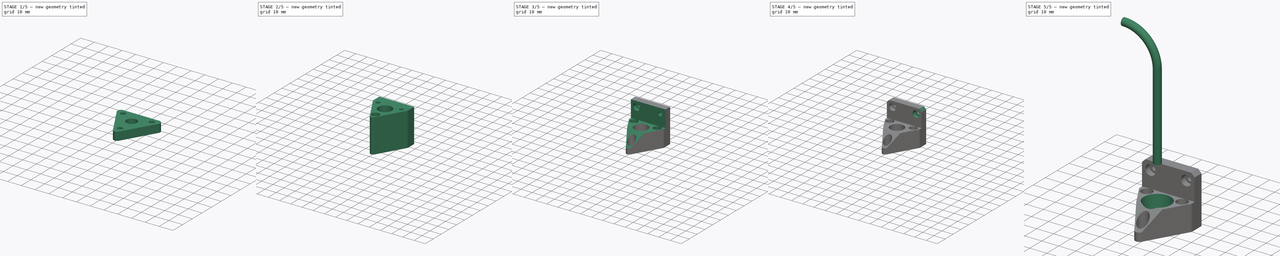
[diagram: build sequence overview — one tinted view per stage of 5, left to right]
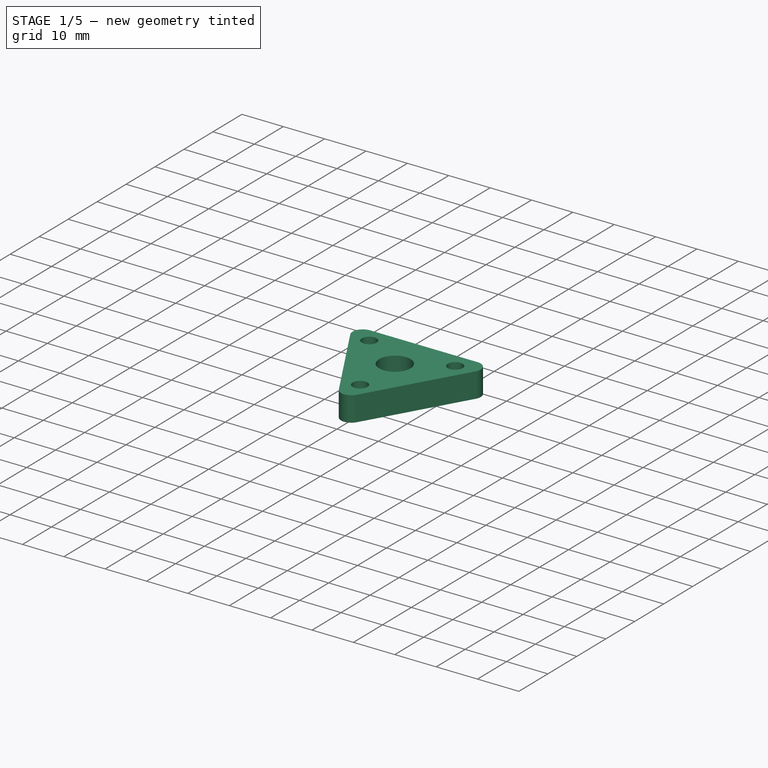
[diagram: stage 1 of 5 — iso view after this stage's code; geometry added in this stage tinted green]
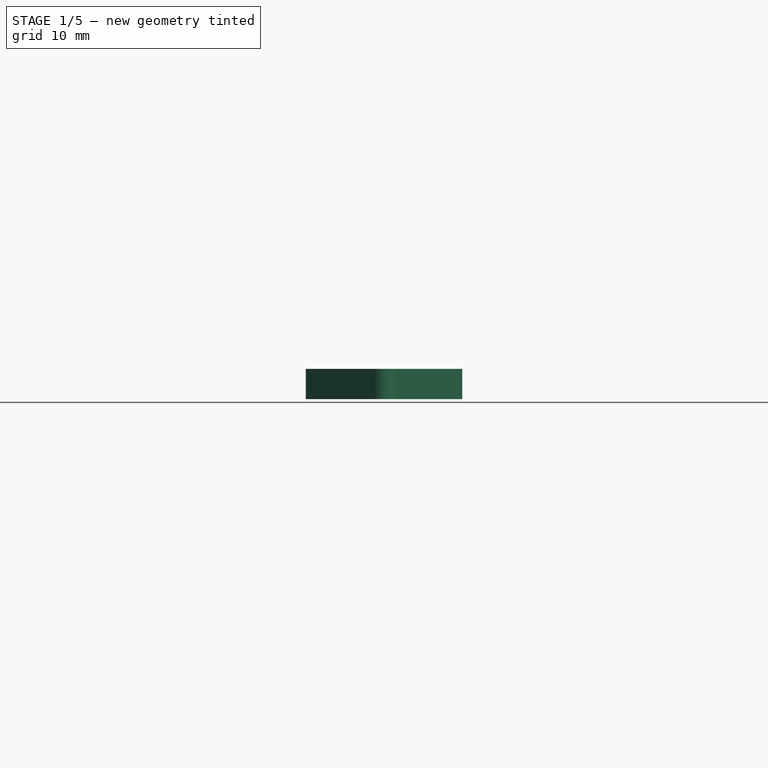
[diagram: stage 1 of 5 — front view after this stage's code; geometry added in this stage tinted green]
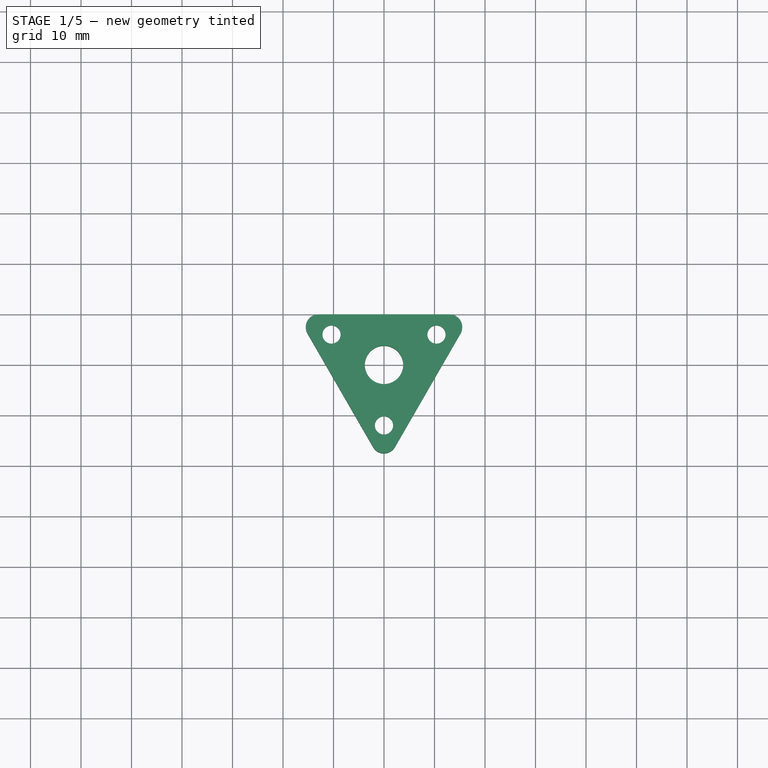
[diagram: stage 1 of 5 — top view after this stage's code; geometry added in this stage tinted green]
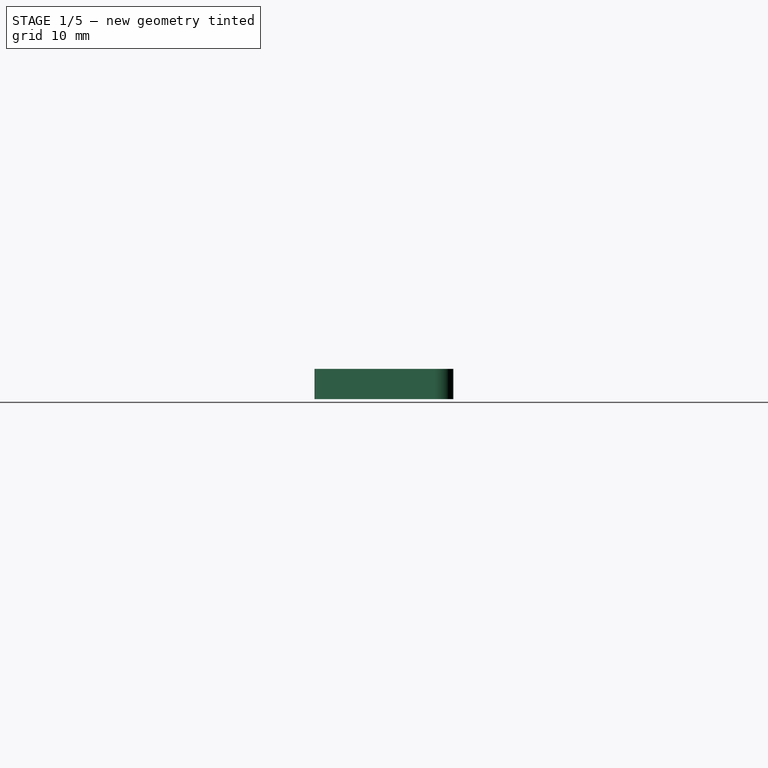
[diagram: stage 1 of 5 — right view after this stage's code; geometry added in this stage tinted green]
FCSTD DOCUMENT  (FreeCAD 0.18R16158 (Git))
Label: camera_probe_mount
License: All rights reserved
LicenseURL: http://en.wikipedia.org/wiki/All_rights_reserved
objects: Sketcher::SketchObject×20, PartDesign::Pocket×13, PartDesign::Body×4, PartDesign::Mirrored×4, PartDesign::Pad×3, PartDesign::PolarPattern×3, PartDesign::ShapeBinder×2, App::Part×2, PartDesign::SubtractivePipe×1, Part::Helix×1, PartDesign::Plane×1, PartDesign::Chamfer×1, PartDesign::SubtractiveLoft×1
note: 72 computed .brp shape members not serialized (recipe doc carries the construction recipe); baked Part::Feature solids carry a one-line shape summary decoded from their .brp

FEATURE [PartDesign::Body] Body001  label="cable"
  Group = -> [Sketch002,ShapeBinder,Sketch003,SubtractivePipe]
  Origin = -> Origin002
  Tip = -> SubtractivePipe
FEATURE [App::Part] Part  label="camera"
  Group = -> [Body,Body001]
  Origin = -> Origin
FEATURE [Part::Helix] Helix  label="spring"
  Angle = 0
  AttacherType = Attacher::AttachEngine3D
  Height = 20
  LocalCoord = 0
  Pitch = 4
  Placement = pos=(0,0,6) rot=(0,0,1;0rad)
  Radius = 5.84
  Style = 1
FEATURE [Sketcher::SketchObject] Sketch004
  MapMode = 5
  Support = -> [XY_Plane004]
  sketch-geometry (17):
    g0: Circle CenterX=0 CenterY=0 CenterZ=0 NormalX=0 NormalY=0 NormalZ=1 AngleXU=0 Radius=3.8
    g1: LineSegment StartX=-12.9904 StartY=10 StartZ=0 EndX=12.9904 EndY=10 EndZ=0
    g2: LineSegment StartX=15.1554 StartY=6.25 StartZ=0 EndX=2.16506 EndY=-16.25 EndZ=0
    g3: LineSegment StartX=-2.16506 StartY=-16.25 StartZ=0 EndX=-15.1554 EndY=6.25 EndZ=0
    g4: ArcOfCircle CenterX=-12.9904 CenterY=7.5 CenterZ=0 NormalX=0 NormalY=0 NormalZ=1 AngleXU=0 Radius=2.5 StartAngle=1.5708 EndAngle=3.66519
    g5: ArcOfCircle CenterX=12.9904 CenterY=7.5 CenterZ=0 NormalX=0 NormalY=0 NormalZ=1 AngleXU=0 Radius=2.5 StartAngle=5.75959 EndAngle=7.85398
    g6: ArcOfCircle CenterX=0 CenterY=-15 CenterZ=0 NormalX=0 NormalY=0 NormalZ=1 AngleXU=0 Radius=2.5 StartAngle=3.66519 EndAngle=5.75959
    g7: LineSegment [constr] StartX=-12.9904 StartY=10 StartZ=0 EndX=-12.9904 EndY=7.5 EndZ=0
    g8: LineSegment [constr] StartX=-12.9904 StartY=7.5 StartZ=0 EndX=-15.1554 EndY=6.25 EndZ=0
    g9: LineSegment [constr] StartX=12.9904 StartY=7.5 StartZ=0 EndX=12.9904 EndY=10 EndZ=0
    g10: LineSegment [constr] StartX=12.9904 StartY=7.5 StartZ=0 EndX=15.1554 EndY=6.25 EndZ=0
    g11: LineSegment [constr] StartX=0 StartY=-15 StartZ=0 EndX=-2.16506 EndY=-16.25 EndZ=0
    g12: LineSegment [constr] StartX=0 StartY=-15 StartZ=0 EndX=2.16506 EndY=-16.25 EndZ=0
    g13: LineSegment [constr] StartX=-2.16506 StartY=-16.25 StartZ=0 EndX=2.16506 EndY=-16.25 EndZ=0
    g14: LineSegment [constr] StartX=0 StartY=0 StartZ=0 EndX=12.9904 EndY=7.5 EndZ=0
    g15: LineSegment [constr] StartX=0 StartY=0 StartZ=0 EndX=-12.9904 EndY=7.5 EndZ=0
    g16: LineSegment [constr] StartX=0 StartY=0 StartZ=0 EndX=0 EndY=-15 EndZ=0
  constraints (43):
    c: Coincident(g0,g-1)
    c: Horizontal(g1)
    c: Coincident(g4,g3)
    c: Coincident(g4,g1)
    c: Coincident(g5,g1)
    c: Coincident(g5,g2)
    c: PointOnObject(g6,g-2)
    c: Coincident(g6,g3)
    c: Coincident(g6,g2)
    c: Coincident(g7,g1)
    c: Coincident(g7,g4)
    c: Vertical(g7)
    c: Coincident(g8,g4)
    c: Coincident(g8,g3)
    c: Coincident(g9,g5)
    c: Coincident(g9,g1)
    c: Coincident(g10,g5)
    c: Coincident(g10,g2)
    c: Coincident(g11,g6)
    c: Coincident(g11,g3)
    c: Coincident(g12,g6)
    c: Coincident(g12,g2)
    c: Equal(g5,g6)
    c: Vertical(g9)
    c: Angle(g10,g9) = 2.0944
    c: Angle(g7,g8) = 2.0944
    c: Angle(g11,g12) = 2.0944
    c: Coincident(g13,g3)
    c: Coincident(g13,g2)
    c: Horizontal(g13)
    c: Coincident(g14,g0)
    c: Coincident(g14,g5)
    c: Coincident(g15,g0)
    c: Coincident(g15,g4)
    c: Angle(g14,g15) = 2.0944
    c: Symmetric(g5,g4,g-2)
    c: Radius(g5) = 2.5
    c: Coincident(g16,g0)
    c: Coincident(g16,g6)
    c: Equal(g14,g15)
    c: Equal(g15,g16)
    c: DistanceY(g16,g16) = 15
    c: Diameter(g0) = 7.6
FEATURE [PartDesign::Pad] Pad001
  Length = 6
  Length2 = 100
  Profile = -> Sketch004
  Refine = true
  Type = 0
FEATURE [Sketcher::SketchObject] Sketch005
  MapMode = 5
  Placement = pos=(0,0,0) rot=(1,0,0;3.14159rad)
  Support = -> [Pad001]
  sketch-geometry (1):
    g0: Circle CenterX=0 CenterY=12 CenterZ=0 NormalX=0 NormalY=0 NormalZ=1 AngleXU=0 Radius=1.8
  constraints (3):
    c: PointOnObject(g0,g-2)
    c: Diameter(g0) = 3.6
    c: DistanceY(g-1,g0) = 12
FEATURE [PartDesign::Pocket] Pocket001
  BaseFeature = -> Pad001
  Length = 5
  Length2 = 100
  Profile = -> Sketch005
  Refine = true
  Type = 1
FEATURE [PartDesign::PolarPattern] PolarPattern
  Angle = 360
  Axis = -> Sketch005 [N_Axis]
  BaseFeature = -> Pocket001
  Occurrences = 3
  Originals = -> [Pocket001]
  Refine = true
FEATURE [Sketcher::SketchObject] Sketch006
  ExternalGeometry = -> [PolarPattern]
  MapMode = 5
  Placement = pos=(0,0,0) rot=(1,0,0;3.14159rad)
  Support = -> [PolarPattern]
  sketch-geometry (7):
    g0: LineSegment StartX=1.63101 StartY=14.825 StartZ=0 EndX=-1.63101 EndY=14.825 EndZ=0
    g1: LineSegment StartX=-1.63101 StartY=14.825 StartZ=0 EndX=-3.26203 EndY=12 EndZ=0
    g2: LineSegment StartX=-3.26203 StartY=12 StartZ=0 EndX=-1.63101 EndY=9.175 EndZ=0
    g3: LineSegment StartX=-1.63101 StartY=9.175 StartZ=0 EndX=1.63101 EndY=9.175 EndZ=0
    g4: LineSegment StartX=1.63101 StartY=9.175 StartZ=0 EndX=3.26203 EndY=12 EndZ=0
    g5: LineSegment StartX=3.26203 StartY=12 StartZ=0 EndX=1.63101 EndY=14.825 EndZ=0
    g6: Circle [constr] CenterX=0 CenterY=12 CenterZ=0 NormalX=0 NormalY=0 NormalZ=1 AngleXU=0 Radius=3.26203
  constraints (16):
    c: Coincident(g0,g1)
    c: Coincident(g1,g2)
    c: Coincident(g2,g3)
    c: Coincident(g3,g4)
    c: Coincident(g4,g5)
    c: Coincident(g5,g0)
    c: Equal(g0, g1-g5) x5
    c: PointOnObject(g0,g6)
    c: PointOnObject(g1,g6)
    c: PointOnObject(g2,g6)
    c: PointOnObject(g3,g6)
    c: PointOnObject(g4,g6)
    c: PointOnObject(g5,g6)
    c: Coincident(g6,g-3)
    c: Horizontal(g0)
    c: DistanceY(g3,g0) = 5.65
FEATURE [PartDesign::Pocket] Pocket002
  BaseFeature = -> PolarPattern
  Length = 3
  Length2 = 100
  Profile = -> Sketch006
  Refine = true
  Type = 0
FEATURE [PartDesign::PolarPattern] PolarPattern001
  Angle = 360
  Axis = -> Sketch006 [N_Axis]
  BaseFeature = -> Pocket002
  Occurrences = 3
  Originals = -> [Pocket002]
  Refine = true
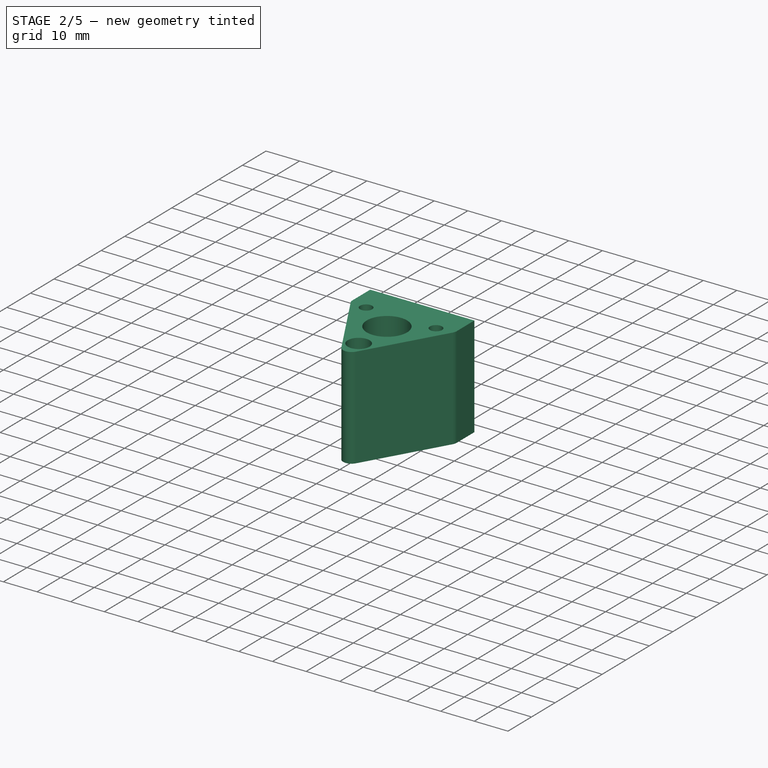
[diagram: stage 2 of 5 — iso view after this stage's code; geometry added in this stage tinted green]
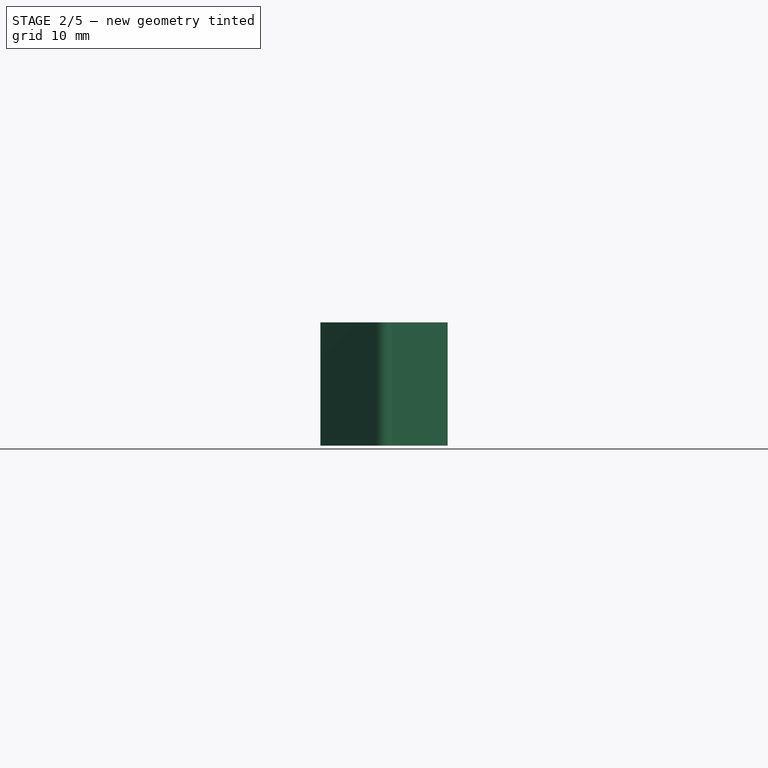
[diagram: stage 2 of 5 — front view after this stage's code; geometry added in this stage tinted green]
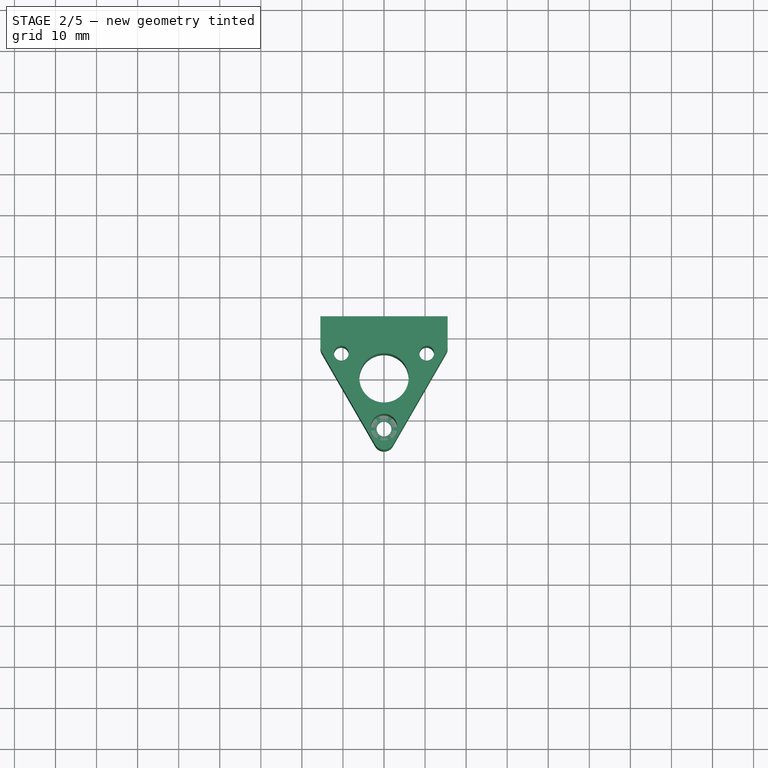
[diagram: stage 2 of 5 — top view after this stage's code; geometry added in this stage tinted green]
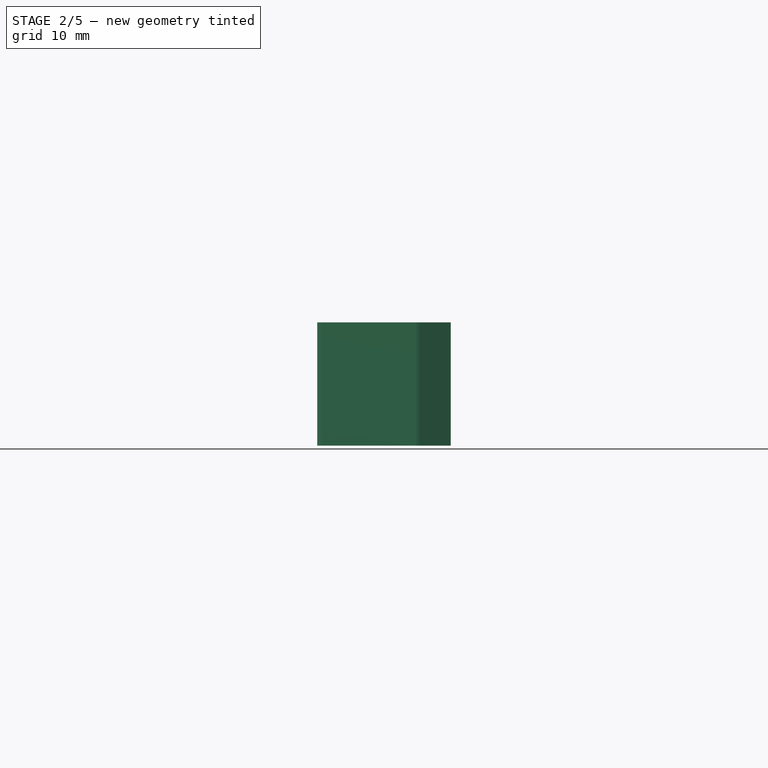
[diagram: stage 2 of 5 — right view after this stage's code; geometry added in this stage tinted green]
FEATURE [Sketcher::SketchObject] Sketch007
  ExternalGeometry = -> [PolarPattern001]
  MapMode = 5
  Placement = pos=(0,10,0) rot=(0,0.707107,0.707107;3.14159rad)
  Support = -> [PolarPattern001]
  sketch-geometry (2):
    g0: Circle CenterX=0 CenterY=3 CenterZ=0 NormalX=0 NormalY=0 NormalZ=1 AngleXU=0 Radius=1.7
    g1: LineSegment [constr] StartX=0 StartY=0 StartZ=0 EndX=0 EndY=6 EndZ=0
  constraints (5):
    c: Diameter(g0) = 3.4
    c: Coincident(g1,g-1)
    c: PointOnObject(g1,g-3)
    c: Vertical(g1)
    c: Symmetric(g1,g-1,g0)
FEATURE [PartDesign::Pocket] Pocket003
  BaseFeature = -> PolarPattern001
  Length = 5.5
  Length2 = 100
  Profile = -> Sketch007
  Refine = true
  Type = 0
FEATURE [Sketcher::SketchObject] Sketch008
  ExternalGeometry = -> [Pocket003]
  MapMode = 5
  Placement = pos=(0,0,0) rot=(1,0,0;3.14159rad)
  Support = -> [Pocket003]
  sketch-geometry (4):
    g0: LineSegment StartX=-2.8 StartY=-5.1 StartZ=0 EndX=2.8 EndY=-5.1 EndZ=0
    g1: LineSegment StartX=2.8 StartY=-5.1 StartZ=0 EndX=2.8 EndY=-7 EndZ=0
    g2: LineSegment StartX=2.8 StartY=-7 StartZ=0 EndX=-2.8 EndY=-7 EndZ=0
    g3: LineSegment StartX=-2.8 StartY=-7 StartZ=0 EndX=-2.8 EndY=-5.1 EndZ=0
  constraints (11):
    c: Coincident(g0,g1)
    c: Coincident(g1,g2)
    c: Coincident(g2,g3)
    c: Coincident(g3,g0)
    c: Horizontal(g2)
    c: Vertical(g1)
    c: Vertical(g3)
    c: Symmetric(g0,g0,g-2)
    c: DistanceY(g3,g3) = 1.9
    c: DistanceY(g-3,g1) = 3
    c: DistanceX(g0,g0) = 5.6
FEATURE [PartDesign::Pocket] Pocket004
  BaseFeature = -> Pocket003
  Length = 5
  Length2 = 100
  Profile = -> Sketch008
  Refine = true
  Type = 1
FEATURE [Sketcher::SketchObject] Sketch009
  ExternalGeometry = -> [Pocket004]
  MapMode = 5
  Placement = pos=(0,10,0) rot=(0,0.707107,0.707107;3.14159rad)
  Support = -> [Pocket004]
  sketch-geometry (5):
    g0: LineSegment StartX=-0.75 StartY=1.47439 StartZ=0 EndX=-0.25 EndY=1.2 EndZ=0
    g1: LineSegment StartX=-0.25 StartY=1.2 StartZ=0 EndX=0.25 EndY=1.2 EndZ=0
    g2: LineSegment StartX=0.25 StartY=1.2 StartZ=0 EndX=0.75 EndY=1.47439 EndZ=0
    g3: LineSegment StartX=0.75 StartY=1.47439 StartZ=0 EndX=-0.75 EndY=1.47439 EndZ=0
    g4: LineSegment [constr] StartX=-0.432225 StartY=1.3 StartZ=0 EndX=0.432225 EndY=1.3 EndZ=0
  constraints (15):
    c: PointOnObject(g0,g-3)
    c: Coincident(g1,g0)
    c: Coincident(g2,g1)
    c: PointOnObject(g2,g-3)
    c: Coincident(g3,g2)
    c: Coincident(g3,g0)
    c: Horizontal(g3)
    c: PointOnObject(g4,g0)
    c: PointOnObject(g4,g2)
    c: Horizontal(g4)
    c: Tangent(g4,g-3)
    c: Symmetric(g1,g0,g-2)
    c: DistanceX(g3,g3) = 1.5
    c: DistanceX(g1,g1) = 0.5
    c: DistanceY(g1,g4) = 0.1
FEATURE [PartDesign::Pocket] Pocket005
  BaseFeature = -> Pocket004
  Length = 0
  Length2 = 100
  Profile = -> Sketch009
  Refine = true
  Type = 3
  UpToFace = -> Pocket004 [Face40]
FEATURE [PartDesign::Body] Body002  label="base"
  Group = -> [Sketch004,Pad001,Sketch005,Pocket001,PolarPattern,Sketch006,Pocket002,PolarPattern001,Sketch007,Pocket003,Sketch008,Pocket004,Sketch009,Pocket005]
  Origin = -> Origin004
  Tip = -> Pocket005
FEATURE [PartDesign::ShapeBinder] ShapeBinder002
  Placement = pos=(0,0,-26) rot=(0,0,1;0rad)
  Support = -> [Pocket005]
  TraceSupport = true
FEATURE [Sketcher::SketchObject] Sketch017
  ExternalGeometry = -> [ShapeBinder002]
  MapMode = 5
  Support = -> [XY_Plane006]
  sketch-geometry (14):
    g0: LineSegment StartX=-2.16506 StartY=-16.25 StartZ=0 EndX=-15.1554 EndY=6.25 EndZ=0
    g1: LineSegment StartX=2.16506 StartY=-16.25 StartZ=0 EndX=15.1554 EndY=6.25 EndZ=0
    g2: LineSegment StartX=15.4904 StartY=15 StartZ=0 EndX=-15.4904 EndY=15 EndZ=0
    g3: LineSegment StartX=-15.4904 StartY=15 StartZ=0 EndX=-15.4904 EndY=7.5 EndZ=0
    g4: LineSegment StartX=15.4904 StartY=15 StartZ=0 EndX=15.4904 EndY=7.5 EndZ=0
    g5: ArcOfCircle CenterX=3e-16 CenterY=-15 CenterZ=0 NormalX=0 NormalY=0 NormalZ=1 AngleXU=0 Radius=2.5 StartAngle=3.66519 EndAngle=5.75959
    g6: ArcOfCircle CenterX=-12.9904 CenterY=7.5 CenterZ=0 NormalX=0 NormalY=0 NormalZ=1 AngleXU=0 Radius=2.5 StartAngle=3.14159 EndAngle=3.66519
    g7: ArcOfCircle CenterX=12.9904 CenterY=7.5 CenterZ=0 NormalX=0 NormalY=0 NormalZ=1 AngleXU=0 Radius=2.5 StartAngle=5.75959 EndAngle=6.28319
    g8: LineSegment [constr] StartX=-12.9904 StartY=7.5 StartZ=0 EndX=-15.4904 EndY=7.5 EndZ=0
    g9: LineSegment [constr] StartX=12.9904 StartY=7.5 StartZ=0 EndX=15.4904 EndY=7.5 EndZ=0
    g10: Circle CenterX=-10.3923 CenterY=6 CenterZ=0 NormalX=0 NormalY=0 NormalZ=1 AngleXU=0 Radius=1.8
    g11: Circle CenterX=10.3923 CenterY=6 CenterZ=0 NormalX=0 NormalY=0 NormalZ=1 AngleXU=0 Radius=1.8
    g12: Circle CenterX=0 CenterY=-12 CenterZ=0 NormalX=0 NormalY=0 NormalZ=1 AngleXU=0 Radius=1.8
    g13: Circle CenterX=0 CenterY=0 CenterZ=0 NormalX=0 NormalY=0 NormalZ=1 AngleXU=0 Radius=6
  constraints (35):
    c: Coincident(g5,g1)
    c: Coincident(g5,g0)
    c: Coincident(g3,g2)
    c: Coincident(g2,g4)
    c: Coincident(g0,g-6)
    c: Coincident(g1,g-6)
    c: Equal(g-6,g5)
    c: Vertical(g4)
    c: Vertical(g3)
    c: Horizontal(g2)
    c: Coincident(g6,g0)
    c: Coincident(g6,g3)
    c: Coincident(g7,g4)
    c: Coincident(g7,g1)
    c: Coincident(g1,g-7)
    c: Coincident(g0,g-4)
    c: Equal(g6,g-3)
    c: Equal(g7,g-7)
    c: PointOnObject(g4,g-7)
    c: PointOnObject(g3,g-3)
    c: Coincident(g8,g6)
    c: Coincident(g8,g3)
    c: Horizontal(g8)
    c: Coincident(g9,g7)
    c: Coincident(g9,g4)
    c: Horizontal(g9)
    c: DistanceY(g-7,g2) = 5
    c: Coincident(g10,g-9)
    c: Coincident(g11,g-8)
    c: Coincident(g12,g-10)
    c: Equal(g11,g-8)
    c: Equal(g10,g-9)
    c: Equal(g12,g-10)
    c: Coincident(g13,g-1)
    c: Diameter(g13) = 12
FEATURE [PartDesign::Pad] Pad003
  Length = 30
  Length2 = 100
  Profile = -> Sketch017
  Refine = true
  Type = 0
FEATURE [Sketcher::SketchObject] Sketch018
  ExternalGeometry = -> [Pad003]
  MapMode = 5
  Placement = pos=(0,0,30) rot=(0,0,1;0rad)
  Support = -> [Pad003]
  sketch-geometry (1):
    g0: Circle CenterX=0 CenterY=-12 CenterZ=0 NormalX=0 NormalY=0 NormalZ=1 AngleXU=0 Radius=3.25
  constraints (2):
    c: Coincident(g0,g-3)
    c: Diameter(g0) = 6.5
FEATURE [PartDesign::Pocket] Pocket009
  BaseFeature = -> Pad003
  Length = 0
  Length2 = 100
  Offset = -2.4
  Profile = -> Sketch018
  Refine = true
  Type = 3
  UpToFace = -> Pad003 [Face13]
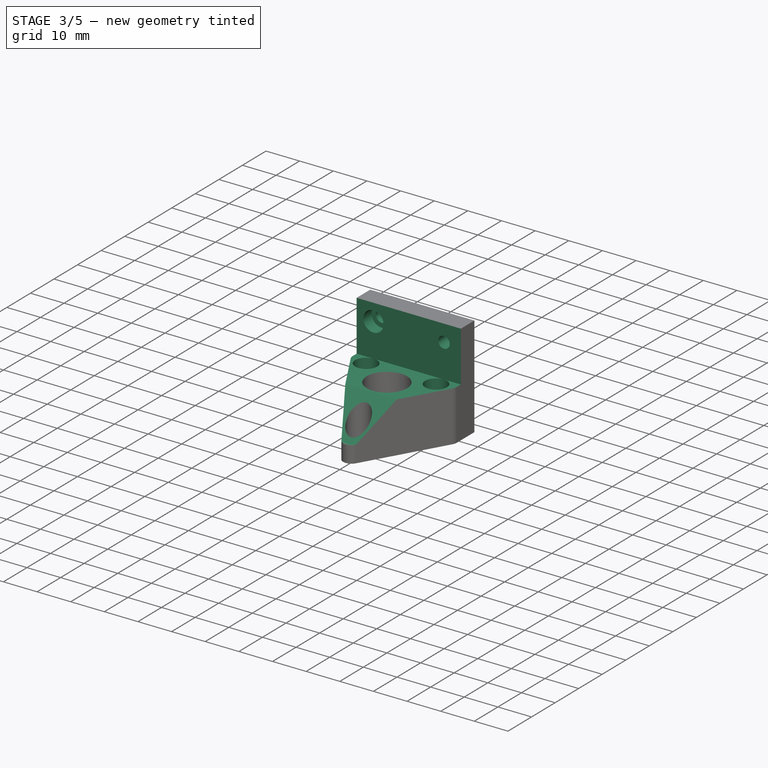
[diagram: stage 3 of 5 — iso view after this stage's code; geometry added in this stage tinted green]
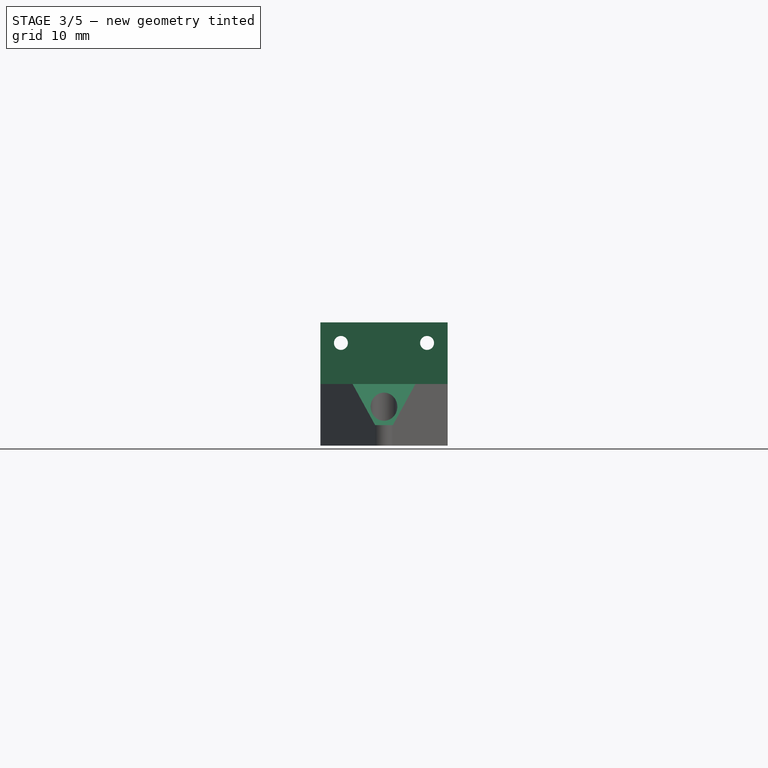
[diagram: stage 3 of 5 — front view after this stage's code; geometry added in this stage tinted green]
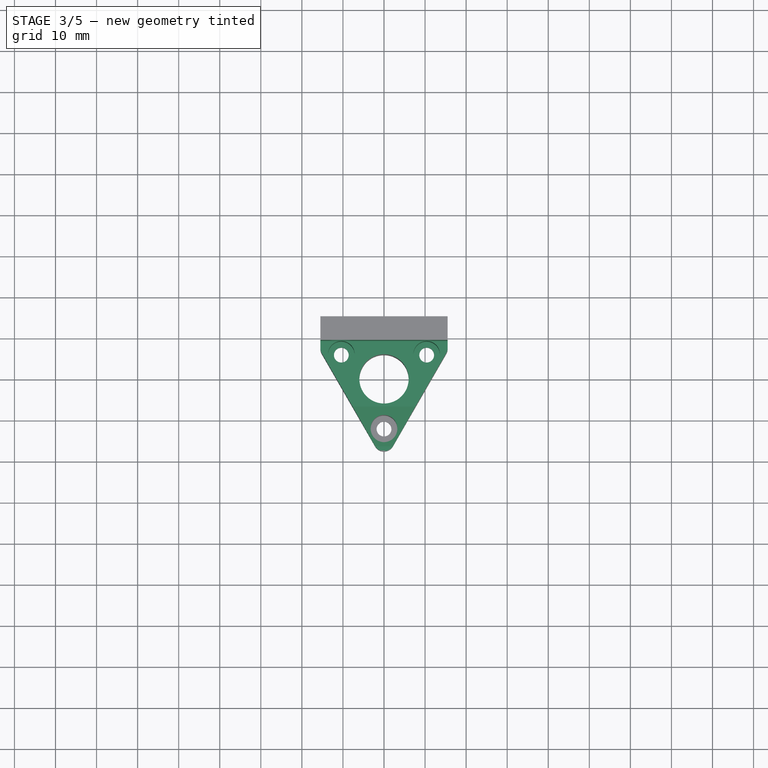
[diagram: stage 3 of 5 — top view after this stage's code; geometry added in this stage tinted green]
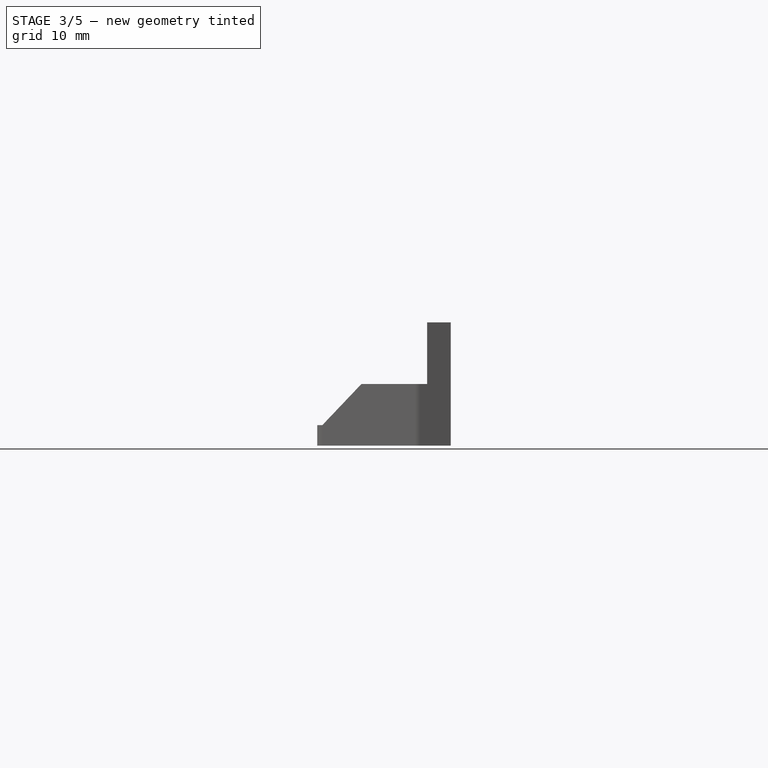
[diagram: stage 3 of 5 — right view after this stage's code; geometry added in this stage tinted green]
FEATURE [PartDesign::PolarPattern] PolarPattern004
  Angle = 360
  Axis = -> Sketch018 [N_Axis]
  BaseFeature = -> Pocket009
  Occurrences = 3
  Originals = -> [Pocket009]
  Refine = true
FEATURE [PartDesign::Plane] DatumPlane004
  Length = 39.6923
  MapMode = 5
  Placement = pos=(15.4904,0,0) rot=(0.57735,0.57735,0.57735;2.0944rad)
  ResizeMode = 0
  Support = -> [PolarPattern004]
  Width = 47.2092
FEATURE [Sketcher::SketchObject] Sketch019
  ExternalGeometry = -> [PolarPattern004]
  MapMode = 5
  Placement = pos=(15.4904,0,0) rot=(0.57735,0.57735,0.57735;2.0944rad)
  Support = -> [DatumPlane004]
  sketch-geometry (4):
    g0: LineSegment StartX=7.5 StartY=30 StartZ=0 EndX=-16.25 EndY=5 EndZ=0
    g1: LineSegment StartX=-16.25 StartY=5 StartZ=0 EndX=-18.75 EndY=5 EndZ=0
    g2: LineSegment StartX=-18.75 StartY=5 StartZ=0 EndX=-18.75 EndY=30 EndZ=0
    g3: LineSegment StartX=-18.75 StartY=30 StartZ=0 EndX=7.5 EndY=30 EndZ=0
  constraints (11):
    c: Coincident(g0,g-3)
    c: PointOnObject(g0,g-4)
    c: Coincident(g1,g0)
    c: Horizontal(g1)
    c: Coincident(g2,g1)
    c: Vertical(g2)
    c: Coincident(g3,g2)
    c: Coincident(g3,g0)
    c: Horizontal(g3)
    c: DistanceX(g1,g1) = 2.5
    c: DistanceY(g-4,g0) = 5
FEATURE [PartDesign::Pocket] Pocket010
  BaseFeature = -> PolarPattern004
  Length = 5
  Length2 = 100
  Profile = -> Sketch019
  Refine = true
  Type = 1
FEATURE [Sketcher::SketchObject] Sketch020
  ExternalGeometry = -> [Pocket010]
  MapMode = 5
  Placement = pos=(0,0,30) rot=(0,0,1;0rad)
  Support = -> [Pocket010]
  sketch-geometry (4):
    g0: LineSegment StartX=-15.4904 StartY=9.25 StartZ=0 EndX=15.4904 EndY=9.25 EndZ=0
    g1: LineSegment StartX=15.4904 StartY=9.25 StartZ=0 EndX=15.4904 EndY=-16.25 EndZ=0
    g2: LineSegment StartX=15.4904 StartY=-16.25 StartZ=0 EndX=-15.4904 EndY=-16.25 EndZ=0
    g3: LineSegment StartX=-15.4904 StartY=-16.25 StartZ=0 EndX=-15.4904 EndY=9.25 EndZ=0
  constraints (12):
    c: Coincident(g1,g2)
    c: Coincident(g2,g3)
    c: Horizontal(g2)
    c: Vertical(g1)
    c: Vertical(g3)
    c: Coincident(g0,g1)
    c: Coincident(g0,g3)
    c: Horizontal(g0)
    c: PointOnObject(g0,g-3)
    c: PointOnObject(g0,g-4)
    c: Tangent(g-5,g0)
    c: PointOnObject(g-6,g2)
FEATURE [PartDesign::Pocket] Pocket011
  BaseFeature = -> Pocket010
  Length = 15
  Length2 = 100
  Profile = -> Sketch020
  Refine = true
  Type = 0
FEATURE [Sketcher::SketchObject] Sketch021
  ExternalGeometry = -> [Pocket011]
  MapMode = 5
  Placement = pos=(0,15,0) rot=(0,0.707107,0.707107;3.14159rad)
  Support = -> [Pocket011]
  sketch-geometry (1):
    g0: Circle CenterX=10.4904 CenterY=25 CenterZ=0 NormalX=0 NormalY=0 NormalZ=1 AngleXU=0 Radius=1.7
  constraints (3):
    c: Diameter(g0) = 3.4
    c: DistanceX(g0,g-3) = 5
    c: DistanceY(g0,g-3) = 5
FEATURE [PartDesign::Pocket] Pocket012
  BaseFeature = -> Pocket011
  Length = 5
  Length2 = 100
  Profile = -> Sketch021
  Refine = true
  Type = 1
FEATURE [PartDesign::Mirrored] Mirrored
  BaseFeature = -> Pocket012
  MirrorPlane = -> Sketch021 [V_Axis]
  Originals = -> [Pocket012]
  Refine = true
FEATURE [Sketcher::SketchObject] Sketch022
  ExternalGeometry = -> [Mirrored]
  MapMode = 5
  Placement = pos=(0,9.25,0) rot=(1,0,0;1.5708rad)
  Support = -> [Mirrored]
  sketch-geometry (1):
    g0: Circle CenterX=-10.4904 CenterY=25 CenterZ=0 NormalX=0 NormalY=0 NormalZ=1 AngleXU=0 Radius=3
  constraints (1):
    c: Diameter(g0) = 6
FEATURE [PartDesign::Pocket] Pocket013
  BaseFeature = -> Mirrored
  Length = 3.5
  Length2 = 100
  Profile = -> Sketch022
  Refine = true
  Type = 0
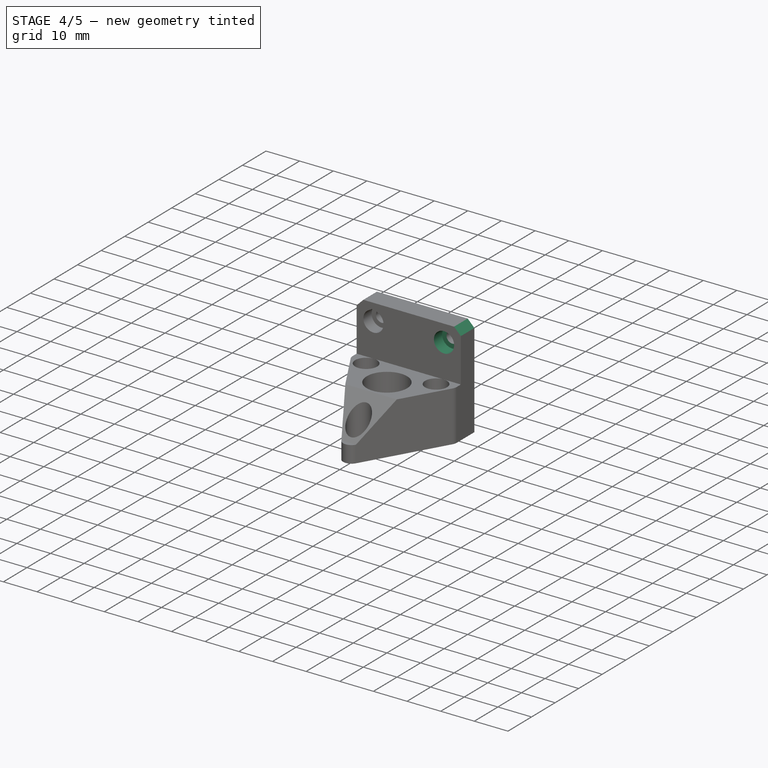
[diagram: stage 4 of 5 — iso view after this stage's code; geometry added in this stage tinted green]
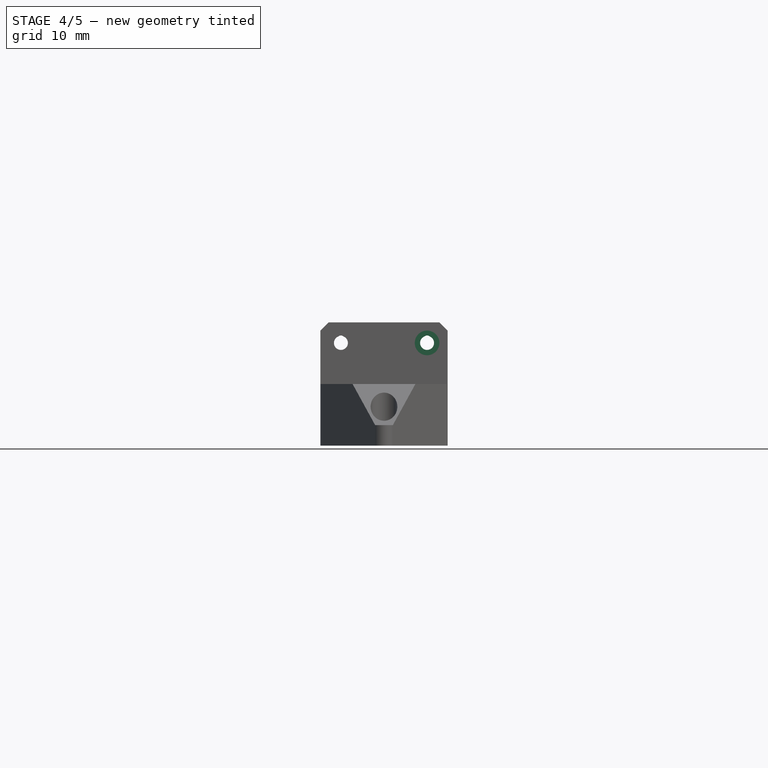
[diagram: stage 4 of 5 — front view after this stage's code; geometry added in this stage tinted green]
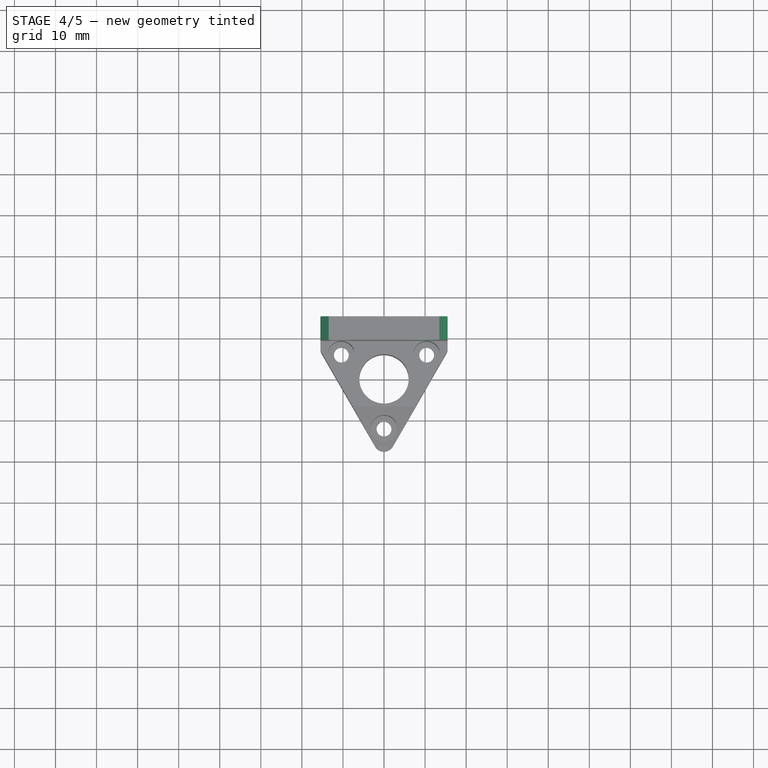
[diagram: stage 4 of 5 — top view after this stage's code; geometry added in this stage tinted green]
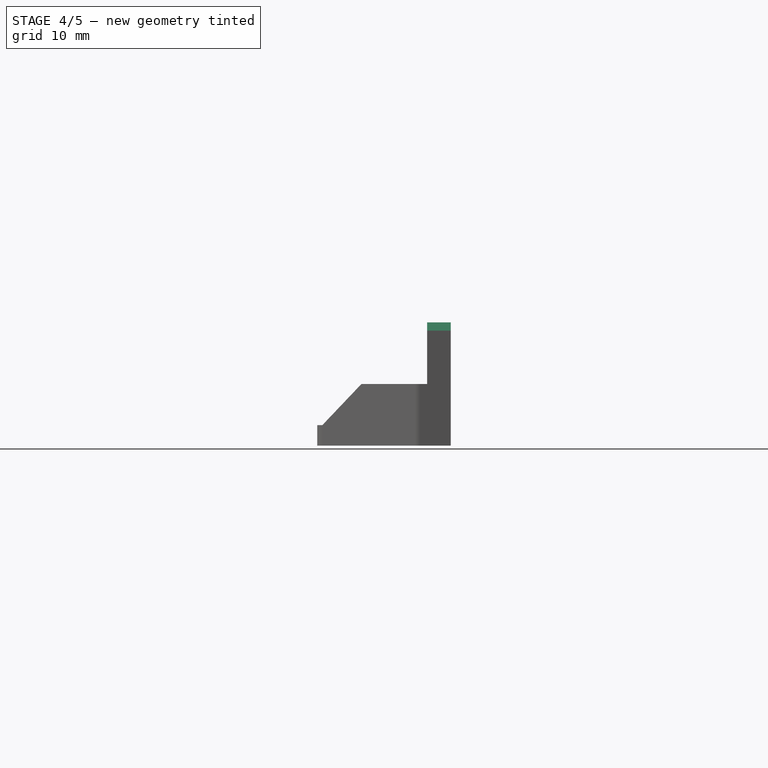
[diagram: stage 4 of 5 — right view after this stage's code; geometry added in this stage tinted green]
FEATURE [PartDesign::Mirrored] Mirrored001
  BaseFeature = -> Pocket013
  MirrorPlane = -> Sketch022 [V_Axis]
  Originals = -> [Pocket013]
  Refine = true
FEATURE [PartDesign::Chamfer] Chamfer
  Base = -> Mirrored001 [Edge27,Edge36]
  BaseFeature = -> Mirrored001
  Size = 2
FEATURE [Sketcher::SketchObject] Sketch023
  ExternalGeometry = -> [Chamfer]
  MapMode = 5
  Placement = pos=(0,15,0) rot=(0,0.707107,0.707107;3.14159rad)
  Support = -> [Chamfer]
  sketch-geometry (6):
    g0: LineSegment StartX=9.74038 StartY=26.5256 StartZ=0 EndX=10.2404 EndY=26.8 EndZ=0
    g1: LineSegment StartX=10.2404 StartY=26.8 StartZ=0 EndX=10.7404 EndY=26.8 EndZ=0
    g2: LineSegment StartX=10.7404 StartY=26.8 StartZ=0 EndX=11.2404 EndY=26.5256 EndZ=0
    g3: LineSegment StartX=11.2404 StartY=26.5256 StartZ=0 EndX=9.74038 EndY=26.5256 EndZ=0
    g4: LineSegment [constr] StartX=10.4904 StartY=25 StartZ=0 EndX=10.4904 EndY=26.8 EndZ=0
    g5: LineSegment [constr] StartX=10.0582 StartY=26.7 StartZ=0 EndX=10.9226 EndY=26.7 EndZ=0
  constraints (18):
    c: PointOnObject(g0,g-3)
    c: Horizontal(g1)
    c: Coincident(g2,g1)
    c: PointOnObject(g2,g-3)
    c: Coincident(g3,g0)
    c: Coincident(g0,g1)
    c: Horizontal(g3)
    c: Coincident(g3,g2)
    c: Coincident(g4,g-3)
    c: Vertical(g4)
    c: Symmetric(g1,g0,g4)
    c: DistanceX(g3,g3) = 1.5
    c: DistanceX(g1,g1) = 0.5
    c: PointOnObject(g5,g0)
    c: PointOnObject(g5,g2)
    c: Horizontal(g5)
    c: Tangent(g-3,g5)
    c: DistanceY(g5,g1) = 0.1
FEATURE [PartDesign::Pocket] Pocket014
  BaseFeature = -> Chamfer
  Length = 5
  Length2 = 100
  Profile = -> Sketch023
  Refine = true
  Type = 1
FEATURE [PartDesign::Mirrored] Mirrored002
  BaseFeature = -> Pocket014
  MirrorPlane = -> Sketch023 [V_Axis]
  Originals = -> [Pocket014]
  Refine = true
FEATURE [Sketcher::SketchObject] Sketch024
  ExternalGeometry = -> [Mirrored002]
  MapMode = 5
  Placement = pos=(0,9.25,0) rot=(1,0,0;1.5708rad)
  Support = -> [Mirrored002]
  sketch-geometry (6):
    g0: LineSegment StartX=-11.7404 StartY=27.7272 StartZ=0 EndX=-10.9904 EndY=28.2 EndZ=0
    g1: LineSegment StartX=-10.9904 StartY=28.2 StartZ=0 EndX=-9.99038 EndY=28.2 EndZ=0
    g2: LineSegment StartX=-9.99038 StartY=28.2 StartZ=0 EndX=-9.24038 EndY=27.7272 EndZ=0
    g3: LineSegment StartX=-9.24038 StartY=27.7272 StartZ=0 EndX=-11.7404 EndY=27.7272 EndZ=0
    g4: LineSegment [constr] StartX=-10.4904 StartY=25 StartZ=0 EndX=-10.4904 EndY=28.2 EndZ=0
    g5: LineSegment [constr] StartX=-11.3076 StartY=28 StartZ=0 EndX=-9.67314 EndY=28 EndZ=0
  constraints (18):
    c: PointOnObject(g0,g-3)
    c: Coincident(g1,g0)
    c: Horizontal(g1)
    c: Coincident(g2,g1)
    c: PointOnObject(g2,g-3)
    c: Coincident(g3,g2)
    c: Coincident(g3,g0)
    c: Horizontal(g3)
    c: Coincident(g4,g-3)
    c: Vertical(g4)
    c: PointOnObject(g5,g0)
    c: PointOnObject(g5,g2)
    c: Horizontal(g5)
    c: Symmetric(g1,g0,g4)
    c: Tangent(g5,g-3)
    c: DistanceX(g3,g3) = 2.5
    c: DistanceX(g1,g1) = 1
    c: DistanceY(g5,g1) = 0.2
FEATURE [PartDesign::Pocket] Pocket015
  BaseFeature = -> Mirrored002
  Length = 0
  Length2 = 100
  Profile = -> Sketch024
  Refine = true
  Type = 3
  UpToFace = -> Mirrored002 [Face31]
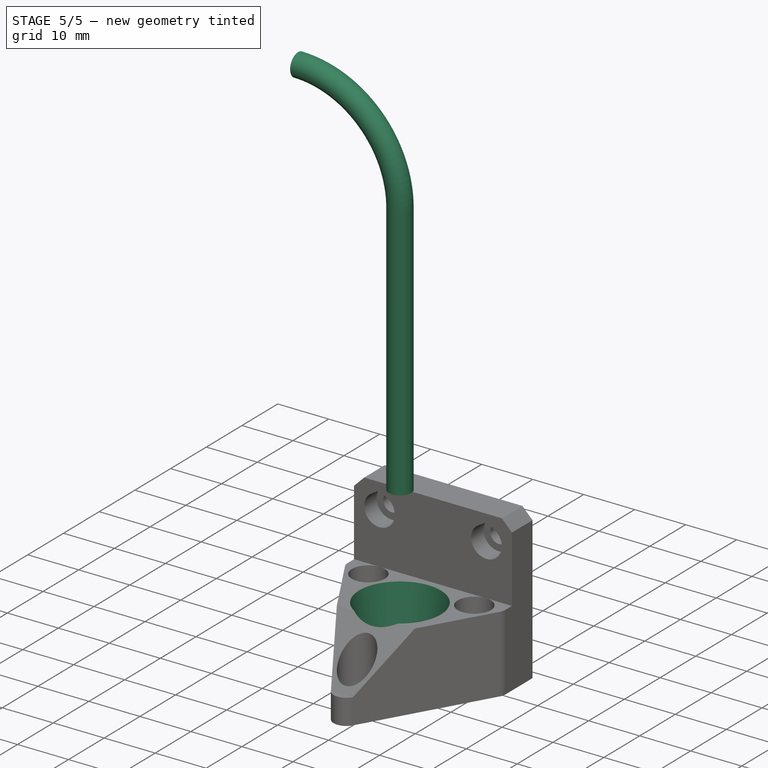
[diagram: stage 5 of 5 — iso view after this stage's code; geometry added in this stage tinted green]
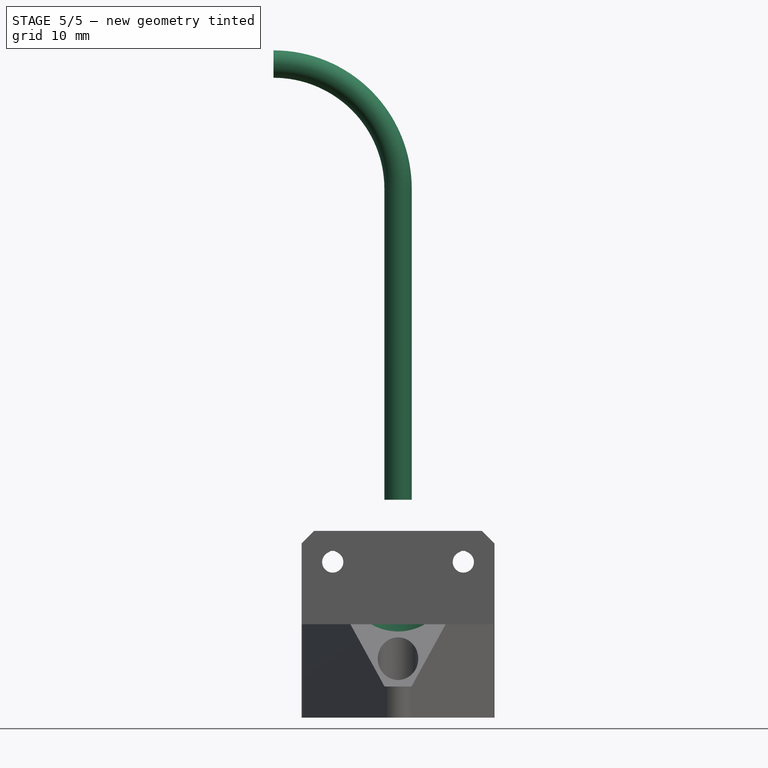
[diagram: stage 5 of 5 — front view after this stage's code; geometry added in this stage tinted green]
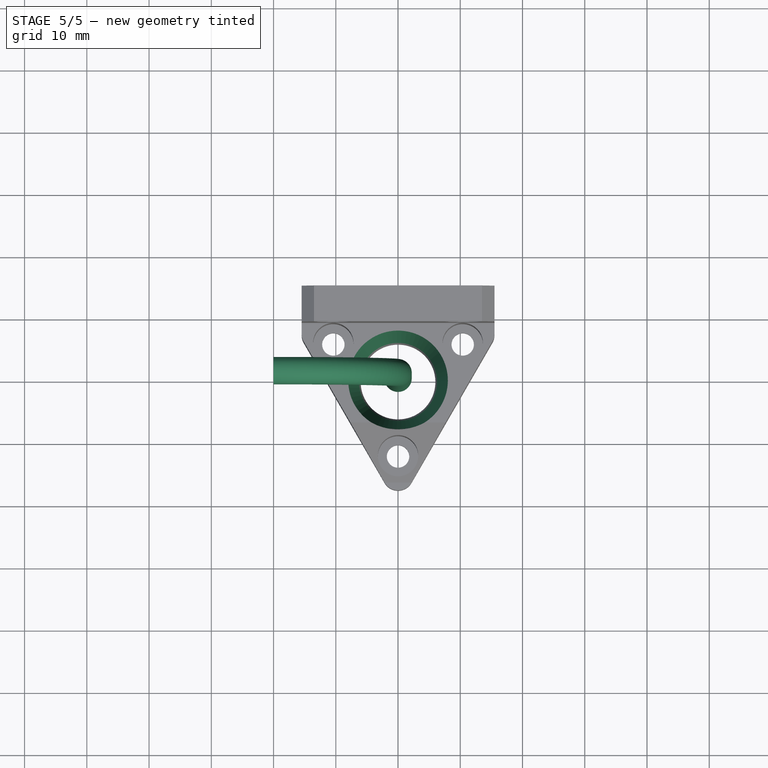
[diagram: stage 5 of 5 — top view after this stage's code; geometry added in this stage tinted green]
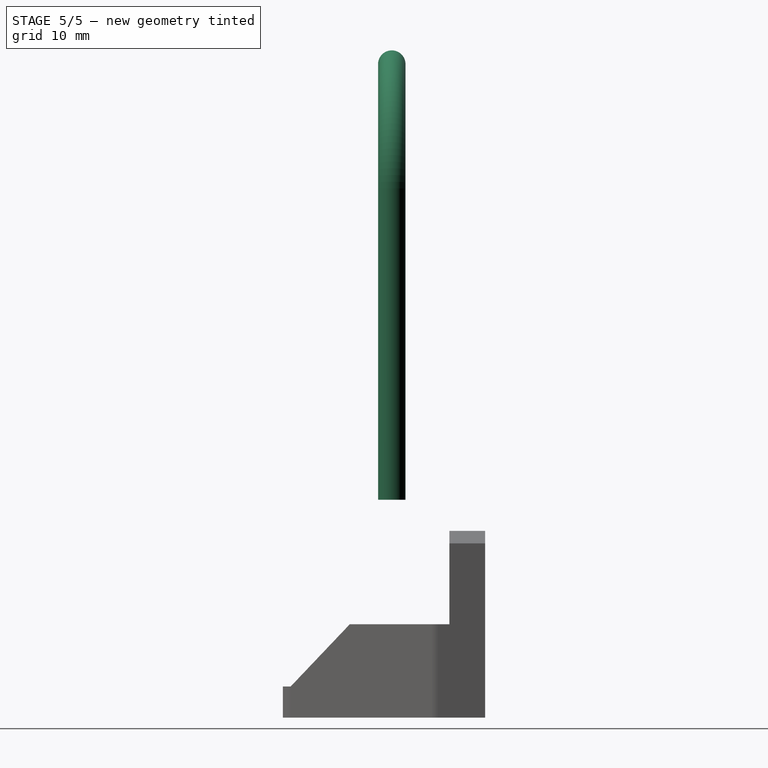
[diagram: stage 5 of 5 — right view after this stage's code; geometry added in this stage tinted green]
FEATURE [Sketcher::SketchObject] Sketch
  MapMode = 5
  Support = -> [XY_Plane001]
  sketch-geometry (1):
    g0: Circle CenterX=0 CenterY=0 CenterZ=0 NormalX=0 NormalY=0 NormalZ=1 AngleXU=0 Radius=3.675
  constraints (2):
    c: Coincident(g0,g-1)
    c: Diameter(g0) = 7.35
FEATURE [PartDesign::Pad] Pad
  Length = 35
  Length2 = 100
  Profile = -> Sketch
  Refine = true
  Type = 0
FEATURE [Sketcher::SketchObject] Sketch001
  MapMode = 5
  Placement = pos=(0,0,0) rot=(1,0,0;3.14159rad)
  Support = -> [Pad]
  sketch-geometry (1):
    g0: Circle CenterX=0 CenterY=0 CenterZ=0 NormalX=0 NormalY=0 NormalZ=1 AngleXU=0 Radius=3.4
  constraints (2):
    c: Coincident(g0,g-1)
    c: Diameter(g0) = 6.8
FEATURE [PartDesign::Pocket] Pocket
  BaseFeature = -> Pad
  Length = 1
  Length2 = 100
  Profile = -> Sketch001
  Refine = true
  Type = 0
FEATURE [PartDesign::Body] Body
  Group = -> [Sketch,Pad,Sketch001,Pocket]
  Origin = -> Origin001
  Tip = -> Pocket
FEATURE [Sketcher::SketchObject] Sketch002
  MapMode = 5
  Placement = pos=(0,0,0) rot=(1,0,0;1.5708rad)
  Support = -> [XZ_Plane002]
  sketch-geometry (4):
    g0: LineSegment StartX=0 StartY=35 StartZ=0 EndX=0 EndY=85 EndZ=0
    g1: ArcOfCircle CenterX=-20 CenterY=85 CenterZ=0 NormalX=0 NormalY=0 NormalZ=1 AngleXU=0 Radius=20 StartAngle=-2.984e-13 EndAngle=1.5708
    g2: LineSegment [constr] StartX=-20 StartY=85 StartZ=0 EndX=0 EndY=85 EndZ=0
    g3: LineSegment [constr] StartX=-20 StartY=85 StartZ=0 EndX=-20 EndY=105 EndZ=0
  constraints (12):
    c: PointOnObject(g0,g-2)
    c: Vertical(g0)
    c: DistanceY(g-1,g0) = 35
    c: DistanceY(g0,g0) = 50
    c: Coincident(g1,g0)
    c: Coincident(g2,g1)
    c: Coincident(g2,g0)
    c: Coincident(g3,g1)
    c: Coincident(g3,g1)
    c: Vertical(g3)
    c: Horizontal(g2)
    c: Radius(g1) = 20
FEATURE [PartDesign::ShapeBinder] ShapeBinder
  Placement = pos=(0,0,35) rot=(0,0,1;0rad)
  Support = -> [Pocket]
  TraceSupport = true
FEATURE [Sketcher::SketchObject] Sketch003
  MapMode = 5
  Placement = pos=(0,0,35) rot=(0,0,1;0rad)
  Support = -> [ShapeBinder]
  sketch-geometry (1):
    g0: Circle CenterX=0 CenterY=0 CenterZ=0 NormalX=0 NormalY=0 NormalZ=1 AngleXU=0 Radius=2.2
  constraints (2):
    c: Coincident(g0,g-1)
    c: Diameter(g0) = 4.4
FEATURE [PartDesign::SubtractivePipe] SubtractivePipe
  AuxilleryCurvelinear = true
  AuxillerySpineTangent = false
  Binormal = (0,0,0)
  Mode = 0
  Placement = pos=(0,0,35) rot=(0,0,1;0rad)
  Profile = -> Sketch003
  Refine = true
  Spine = -> Sketch002 [Edge1,Edge2]
  SpineTangent = false
  Transformation = 0
  Transition = 0
FEATURE [PartDesign::Mirrored] Mirrored003
  BaseFeature = -> Pocket015
  MirrorPlane = -> Sketch024 [V_Axis]
  Originals = -> [Pocket015]
  Refine = true
FEATURE [Sketcher::SketchObject] Sketch025
  ExternalGeometry = -> [Mirrored003]
  MapMode = 5
  Placement = pos=(0,0,0) rot=(1,0,0;3.14159rad)
  Support = -> [Mirrored003]
  sketch-geometry (1):
    g0: Circle CenterX=0 CenterY=0 CenterZ=0 NormalX=0 NormalY=0 NormalZ=1 AngleXU=0 Radius=6
  constraints (2):
    c: Coincident(g0,g-1)
    c: Equal(g0,g-3)
FEATURE [Sketcher::SketchObject] Sketch026
  MapMode = 5
  Placement = pos=(0,0,15) rot=(0,0,1;0rad)
  Support = -> [Mirrored003]
  sketch-geometry (1):
    g0: Circle CenterX=0 CenterY=0 CenterZ=0 NormalX=0 NormalY=0 NormalZ=1 AngleXU=0 Radius=8
  constraints (2):
    c: Coincident(g0,g-1)
    c: Diameter(g0) = 16
FEATURE [PartDesign::SubtractiveLoft] SubtractiveLoft
  BaseFeature = -> Mirrored003
  Closed = false
  Profile = -> Sketch025
  Refine = true
  Ruled = false
  Sections = -> [Sketch026]
FEATURE [PartDesign::Body] Body004  label="bracket"
  Group = -> [ShapeBinder002,Sketch017,Pad003,Sketch018,Pocket009,PolarPattern004,DatumPlane004,Sketch019,Pocket010,Sketch020,Pocket011,Sketch021,Pocket012,Mirrored,Sketch022,Pocket013,Mirrored001,Chamfer,Sketch023,Pocket014,Mirrored002,Sketch024,Pocket015,Mirrored003,Sketch025,Sketch026,SubtractiveLoft]
  Origin = -> Origin006
  Placement = pos=(0,0,26) rot=(0,0,1;0rad)
  Tip = -> SubtractiveLoft
FEATURE [App::Part] Part001  label="mount"
  Group = -> [Helix,Body002,Body004]
  Origin = -> Origin003
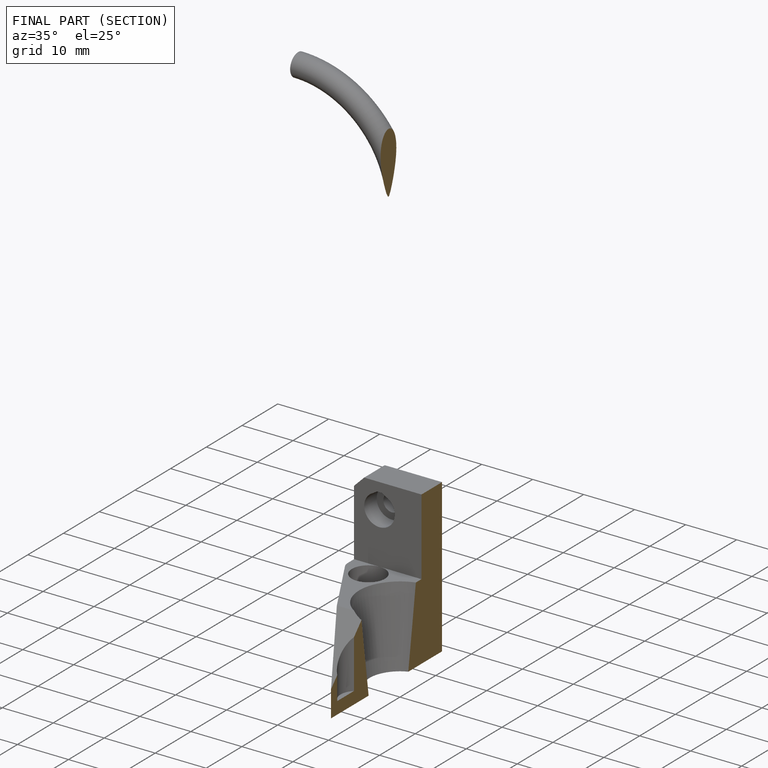
[diagram: finished part — half-section view (interior)]
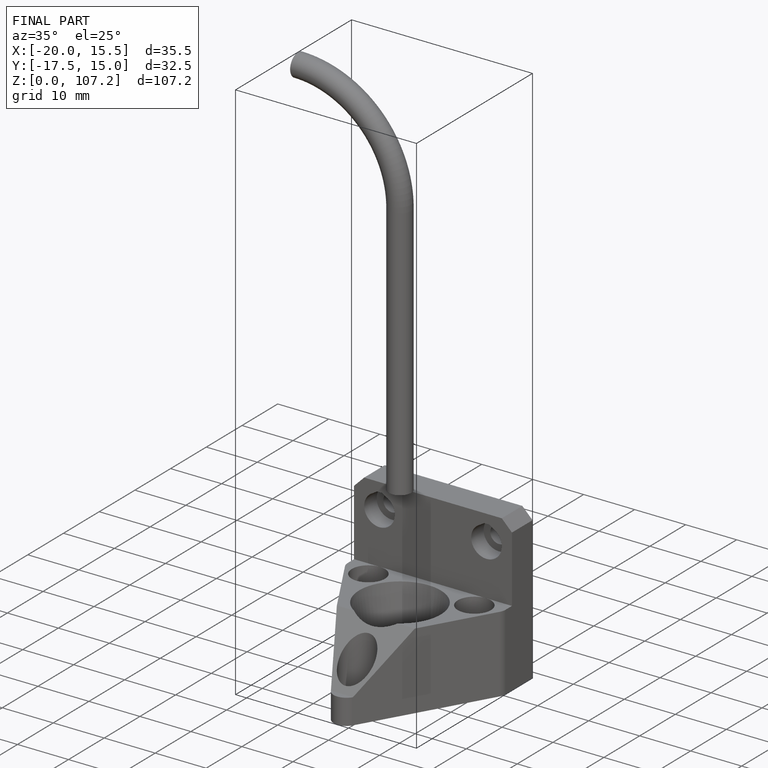
[diagram: finished part — iso view with bounding-box wireframe]
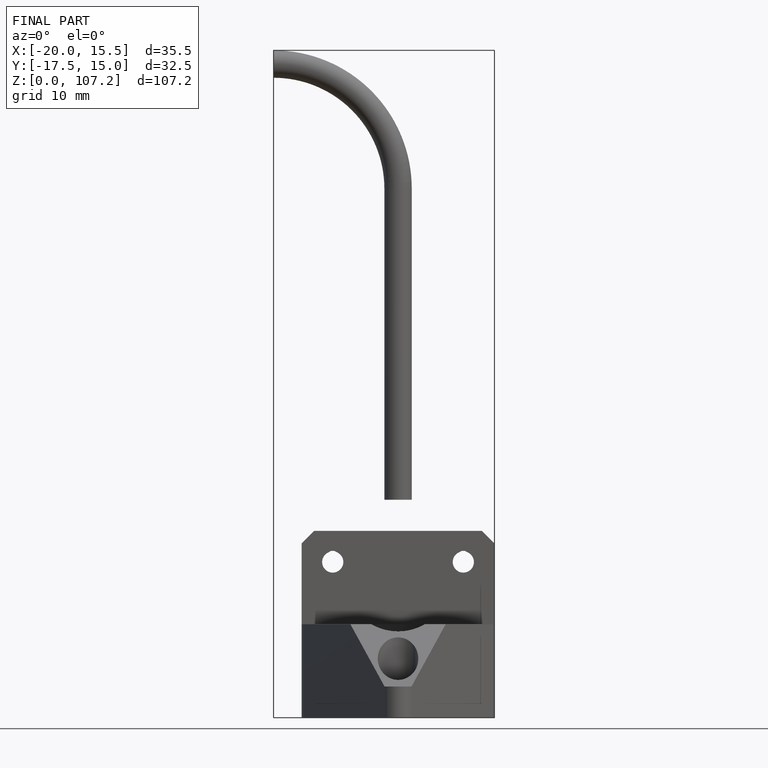
[diagram: finished part — front view with bounding-box wireframe]
